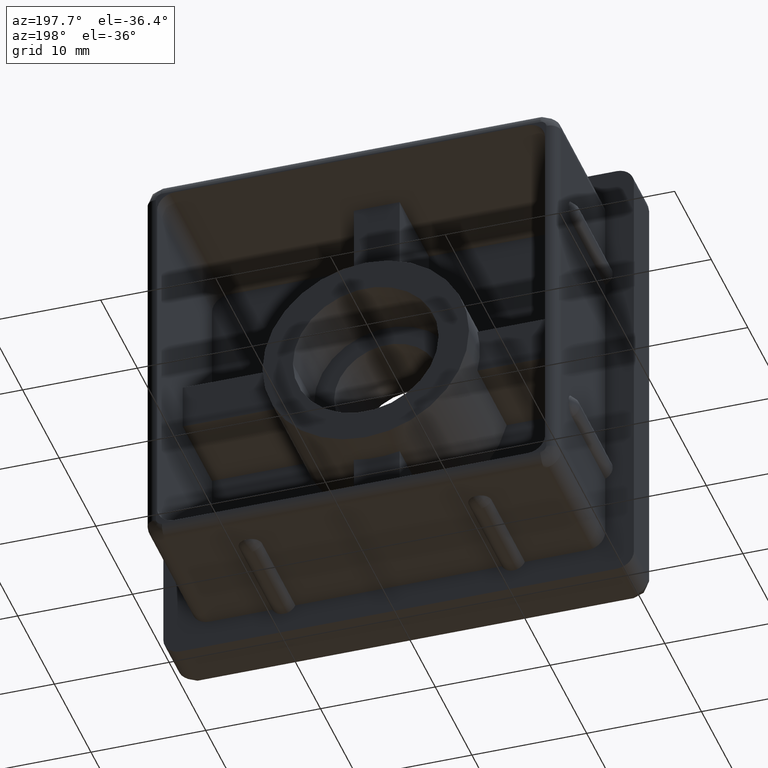
[diagram: clean part render]
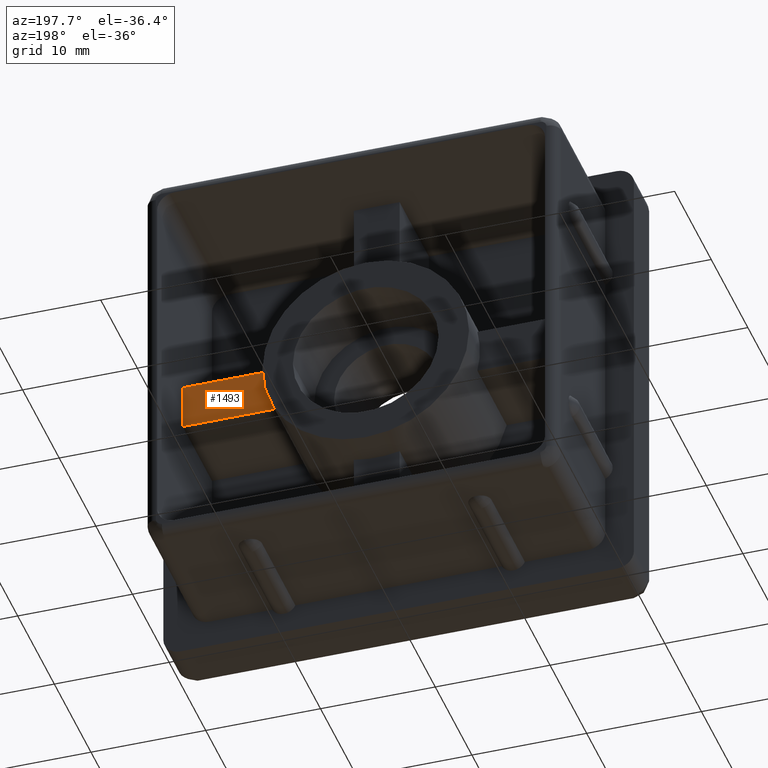
[diagram: same view with one face highlighted and labeled with its STEP entity id]
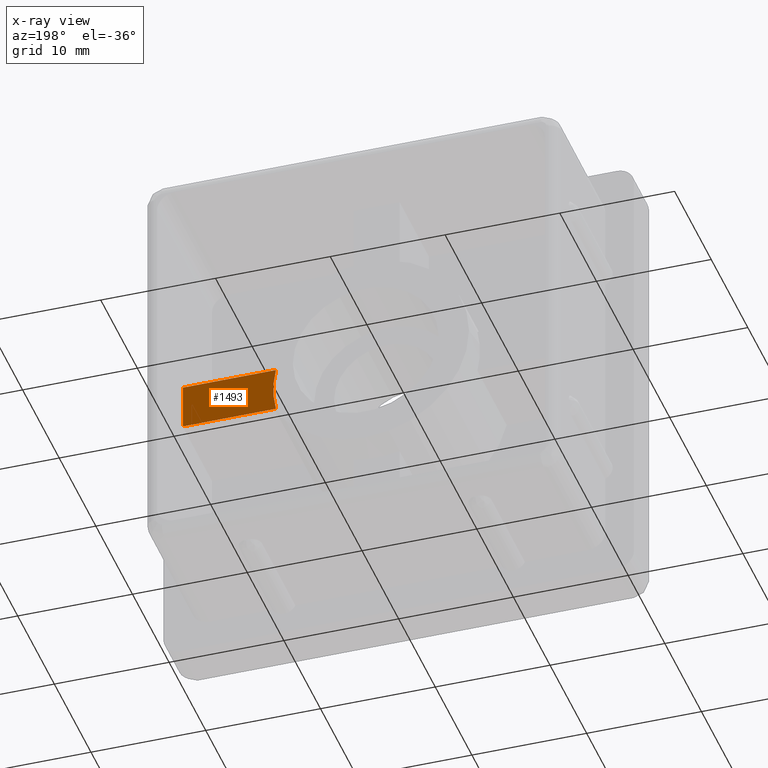
[diagram: x-ray of the same camera — body ghosted, the highlighted face saturated]
A machine part, auxiliary view. The second image highlights one B-rep face of the part: STEP entity #1493.
The next image is the same camera in x-ray: the body ghosted, the highlighted face saturated — about 0% of this face is hidden behind the body in this view.
In plain terms, the highlighted planar face has unit normal (0, 1, 0).
Its self-contained STEP definition (entity closure, byte-faithful):
#49=PLANE('',#1599);
#97=CIRCLE('',#1598,9.);
#204=FACE_OUTER_BOUND('',#289,.T.);
#289=EDGE_LOOP('',(#1179,#1180,#1181,#1182));
#429=LINE('',#3154,#557);
#430=LINE('',#3155,#558);
#431=LINE('',#3156,#559);
#557=VECTOR('',#1873,4.);
#558=VECTOR('',#1874,8.12503561260788);
#559=VECTOR('',#1875,8.12503561260788);
#731=VERTEX_POINT('',#3146);
#732=VERTEX_POINT('',#3148);
#733=VERTEX_POINT('',#3152);
#734=VERTEX_POINT('',#3153);
#912=EDGE_CURVE('',#731,#732,#97,.T.);
#914=EDGE_CURVE('',#733,#734,#429,.T.);
#915=EDGE_CURVE('',#733,#732,#430,.T.);
#916=EDGE_CURVE('',#731,#734,#431,.T.);
#1179=ORIENTED_EDGE('',*,*,#914,.F.);
#1180=ORIENTED_EDGE('',*,*,#915,.T.);
#1181=ORIENTED_EDGE('',*,*,#912,.F.);
#1182=ORIENTED_EDGE('',*,*,#916,.T.);
#1493=ADVANCED_FACE('',(#204),#49,.T.);
#1598=AXIS2_PLACEMENT_3D('',#3149,#1868,#1869);
#1599=AXIS2_PLACEMENT_3D('',#3151,#1871,#1872);
#1868=DIRECTION('center_axis',(0.,1.,0.));
#1869=DIRECTION('ref_axis',(-1.,0.,0.));
#1871=DIRECTION('center_axis',(0.,1.,0.));
#1872=DIRECTION('ref_axis',(0.,0.,1.));
#1873=DIRECTION('',(0.,0.,1.));
#1874=DIRECTION('',(-1.,0.,-2.15876699232669E-16));
#1875=DIRECTION('',(1.,0.,3.08395284618099E-17));
#3146=CARTESIAN_POINT('',(8.77496438739212,6.,2.));
#3148=CARTESIAN_POINT('',(8.77496438739212,6.,-2.));
#3149=CARTESIAN_POINT('Origin',(0.,6.,0.));
#3151=CARTESIAN_POINT('Origin',(13.1496064030108,6.,-5.55111512312578E-16));
#3152=CARTESIAN_POINT('',(16.9,6.,-2.));
#3153=CARTESIAN_POINT('',(16.9,6.,2.));
#3154=CARTESIAN_POINT('',(16.9,6.,-8.45));
#3155=CARTESIAN_POINT('',(17.6496064030107,6.,-2.));
#3156=CARTESIAN_POINT('',(8.64960640301075,6.,2.));